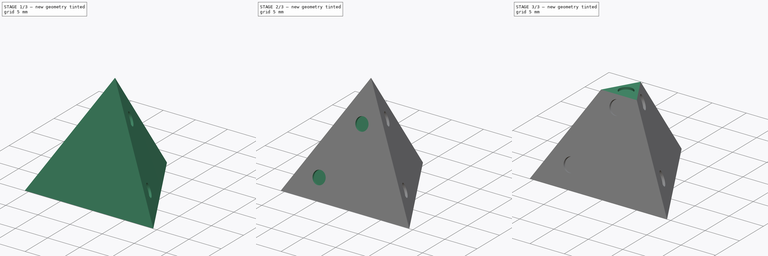
[diagram: build sequence overview — one tinted view per stage of 3, left to right]
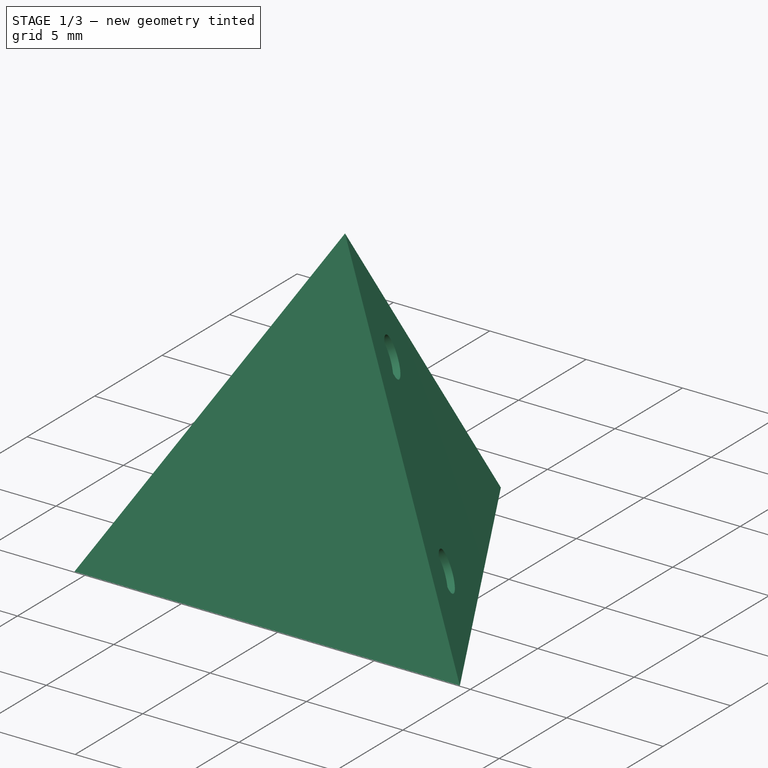
[diagram: stage 1 of 3 — iso view after this stage's code; geometry added in this stage tinted green]
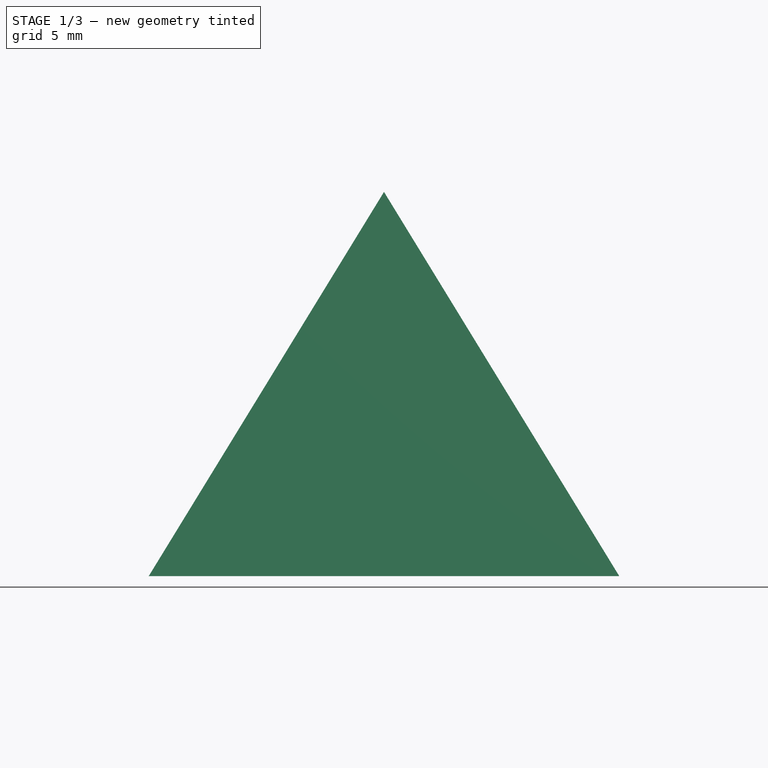
[diagram: stage 1 of 3 — front view after this stage's code; geometry added in this stage tinted green]
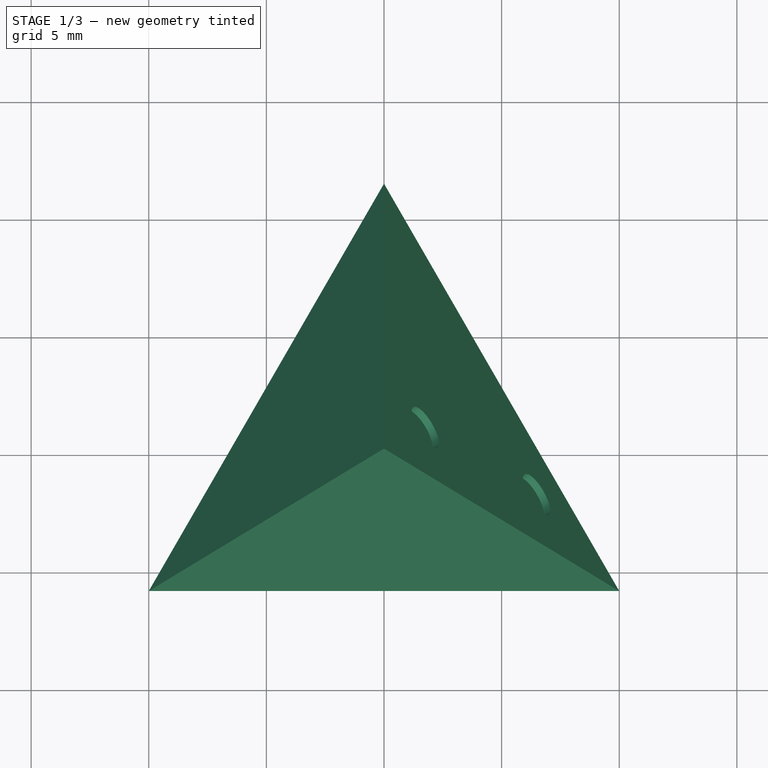
[diagram: stage 1 of 3 — top view after this stage's code; geometry added in this stage tinted green]
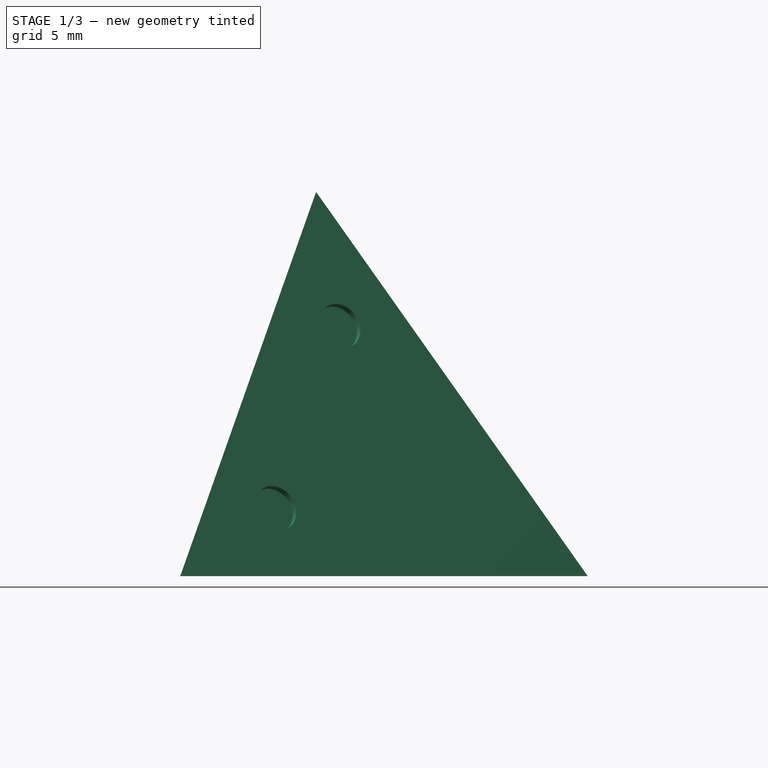
[diagram: stage 1 of 3 — right view after this stage's code; geometry added in this stage tinted green]
FCSTD DOCUMENT  (FreeCAD 0.21R33771 (Git))
Label: draft-4-face
License: All rights reserved
LicenseURL: http://en.wikipedia.org/wiki/All_rights_reserved
objects: Sketcher::SketchObject×6, PartDesign::Plane×6, PartDesign::Pocket×4, PartDesign::SubtractiveCylinder×2, PartDesign::AdditiveLoft×1, PartDesign::Body×1, App::Part×1
note: 27 computed .brp shape members not serialized (recipe doc carries the construction recipe); baked Part::Feature solids carry a one-line shape summary decoded from their .brp

FEATURE [Sketcher::SketchObject] Sketch
  FullyConstrained = true
  MapMode = 5
  Support = -> [XY_Plane]
  sketch-geometry (9):
    g0: LineSegment StartX=-10 StartY=-5.7735 StartZ=0 EndX=10 EndY=-5.7735 EndZ=0
    g1: LineSegment StartX=-10 StartY=-5.7735 StartZ=0 EndX=0 EndY=11.547 EndZ=0
    g2: LineSegment StartX=10 StartY=-5.7735 StartZ=0 EndX=0 EndY=11.547 EndZ=0
    g3: LineSegment StartX=0 StartY=-5.7735 StartZ=0 EndX=0 EndY=0 EndZ=0
    g4: LineSegment StartX=5 StartY=2.88675 StartZ=0 EndX=0 EndY=0 EndZ=0
    g5: LineSegment StartX=-4.99999 StartY=2.88677 StartZ=0 EndX=0 EndY=0 EndZ=0
    g6: LineSegment StartX=10 StartY=-5.7735 StartZ=0 EndX=0 EndY=0 EndZ=0
    g7: LineSegment StartX=-10 StartY=-5.7735 StartZ=0 EndX=0 EndY=0 EndZ=0
    g8: LineSegment StartX=0 StartY=11.547 StartZ=0 EndX=0 EndY=0 EndZ=0
  constraints (24):
    c: Equal(g0,g1)
    c: Coincident(g2,g0)
    c: Coincident(g1,g0)
    c: Coincident(g1,g2)
    c: Horizontal(g0)
    c: Equal(g0,g2)
    c: PointOnObject(g3,g0)
    c: Vertical(g3)
    c: PointOnObject(g4,g2)
    c: PointOnObject(g5,g1)
    c: Coincident(g6,g0)
    c: Coincident(g7,g0)
    c: Coincident(g8,g1)
    c: Vertical(g8)
    c: Equal(g7,g8)
    c: Equal(g5,g4)
    c: Equal(g4,g3)
    c: Coincident(g8,g4)
    c: Coincident(g8,g6)
    c: Coincident(g8,g3)
    c: Coincident(g8,g7)
    c: Coincident(g8,g5)
    c: Coincident(g3,g-1)
    c: DistanceX(g0,g0) = 20
FEATURE [Sketcher::SketchObject] Sketch001
  FullyConstrained = true
  MapMode = 5
  Placement = pos=(0,0,0) rot=(1,0,0;1.5708rad)
  Support = -> [XZ_Plane]
  sketch-geometry (1):
    g0: LineSegment StartX=0 StartY=0 StartZ=0 EndX=0 EndY=16.3299 EndZ=0
  constraints (3):
    c: Coincident(g0,g-1)
    c: PointOnObject(g0,g-2)
    c: DistanceY(g0,g0) = 16.3299
FEATURE [PartDesign::AdditiveLoft] AdditiveLoft
  Closed = false
  Profile = -> Sketch
  Ruled = false
  Sections = -> [Sketch001]
FEATURE [PartDesign::Plane] DatumPlane  label="DatumPlanePip1"
  Length = 88.8622
  MapMode = 5
  Placement = pos=(4.44444,2.566,1.81444) rot=(0.272385,0.596224,0.755197;2.15502rad)
  ResizeMode = 0
  Support = -> [AdditiveLoft]
  Width = 79.2178
FEATURE [Sketcher::SketchObject] Sketch002
  FullyConstrained = true
  MapMode = 5
  Placement = pos=(4.44444,2.566,1.81444) rot=(0.272385,0.596224,0.755197;2.15502rad)
  Support = -> [DatumPlane]
  sketch-geometry (9):
    g0: LineSegment StartX=-2.93 StartY=15.12 StartZ=0 EndX=1.66014 EndY=9.83506 EndZ=0
    g1: LineSegment StartX=1.66014 StartY=9.83506 StartZ=0 EndX=-5.21183 EndY=8.50235 EndZ=0
    g2: Circle CenterX=-1.77584 CenterY=9.1687 CenterZ=0 NormalX=0 NormalY=0 NormalZ=1 AngleXU=0 Radius=1
    g3: LineSegment StartX=-9.44 StartY=-3.76 StartZ=0 EndX=-2.56804 EndY=-2.4273 EndZ=0
    g4: Circle CenterX=-4.8631 CenterY=0.215176 CenterZ=0 NormalX=0 NormalY=0 NormalZ=1 AngleXU=0 Radius=1
    g5: LineSegment StartX=-4.8631 StartY=0.215176 StartZ=0 EndX=-5.6181 EndY=-0.440558 EndZ=0
    g6: LineSegment StartX=-1.77584 StartY=9.1687 StartZ=0 EndX=-1.96623 EndY=10.1504 EndZ=0
    g7: LineSegment StartX=-7.15817 StartY=2.85765 StartZ=0 EndX=-2.56804 EndY=-2.4273 EndZ=0
    g8: LineSegment StartX=-9.44 StartY=-3.76 StartZ=0 EndX=-2.93 EndY=15.12 EndZ=0
  constraints (26):
    c: Coincident(g1,g0)
    c: PointOnObject(g2,g1)
    c: Diameter(g2) = 2
    c: Distance(g3) = 7
    c: Diameter(g4) = 2
    c: Symmetric(g3,g7,g5)
    c: Coincident(g4,g5)
    c: Symmetric(g0,g1,g6)
    c: Coincident(g6,g2)
    c: PointOnObject(g6,g2)
    c: PointOnObject(g5,g4)
    c: Coincident(g7,g3)
    c: PointOnObject(g4,g7)
    c: Coincident(g8,g3)
    c: Coincident(g8,g0)
    c: PointOnObject(g7,g8)
    c: PointOnObject(g1,g8)
    c: Angle(g3,g8) = 1.0472
    c: Angle(g8,g0) = 1.0472
    c: Equal(g3,g7)
    c: Equal(g7,g1)
    c: Equal(g1,g0)
    c: DistanceX(g0,g-1) = 2.93
    c: DistanceY(g3,g-1) = 3.76
    c: DistanceX(g3,g-1) = 9.44
    c: DistanceY(g-1,g0) = 15.12
FEATURE [PartDesign::Pocket] Pocket  label="PocketPip1"
  BaseFeature = -> AdditiveLoft
  Direction = (-0.816496,-0.471404,-0.333334)
  Length = 0.33
  Length2 = 5
  Profile = -> Sketch002
  ReferenceAxis = -> Sketch002 [N_Axis]
  Type = 0
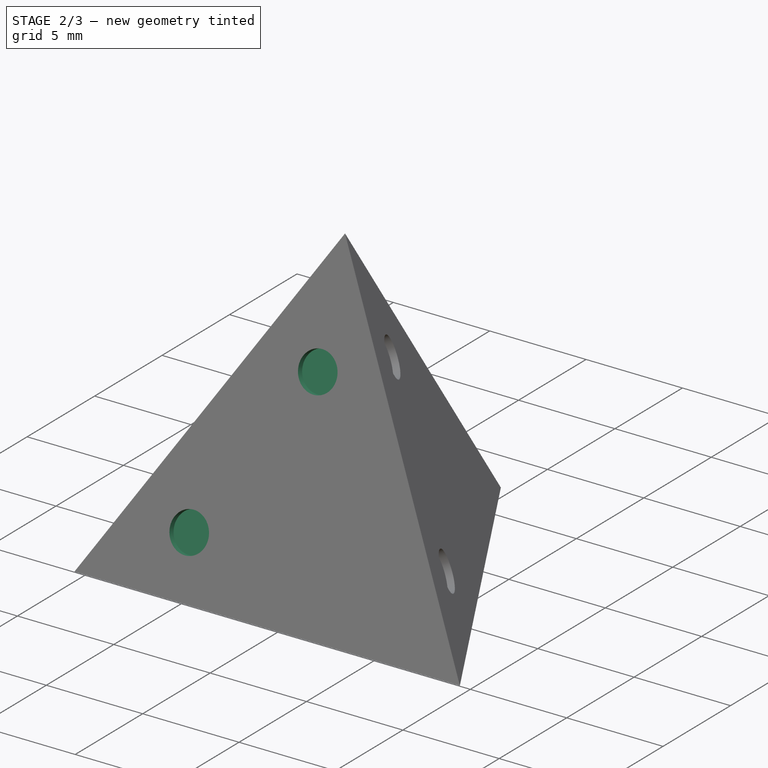
[diagram: stage 2 of 3 — iso view after this stage's code; geometry added in this stage tinted green]
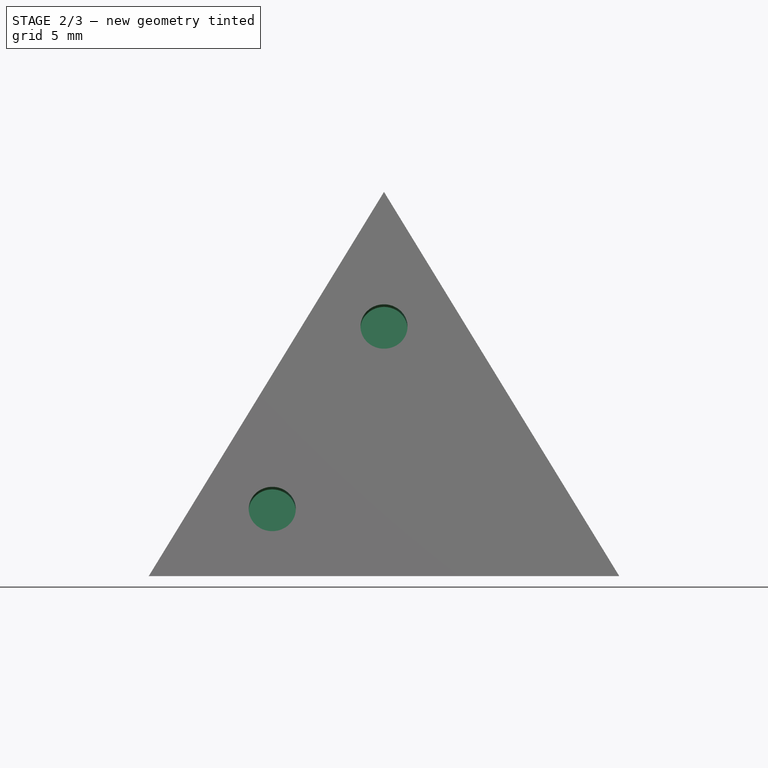
[diagram: stage 2 of 3 — front view after this stage's code; geometry added in this stage tinted green]
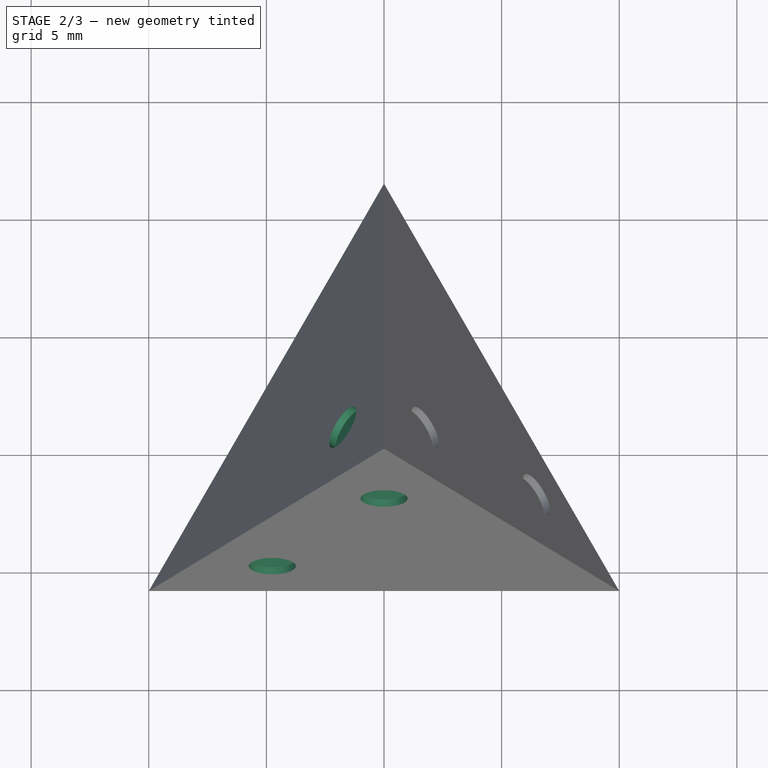
[diagram: stage 2 of 3 — top view after this stage's code; geometry added in this stage tinted green]
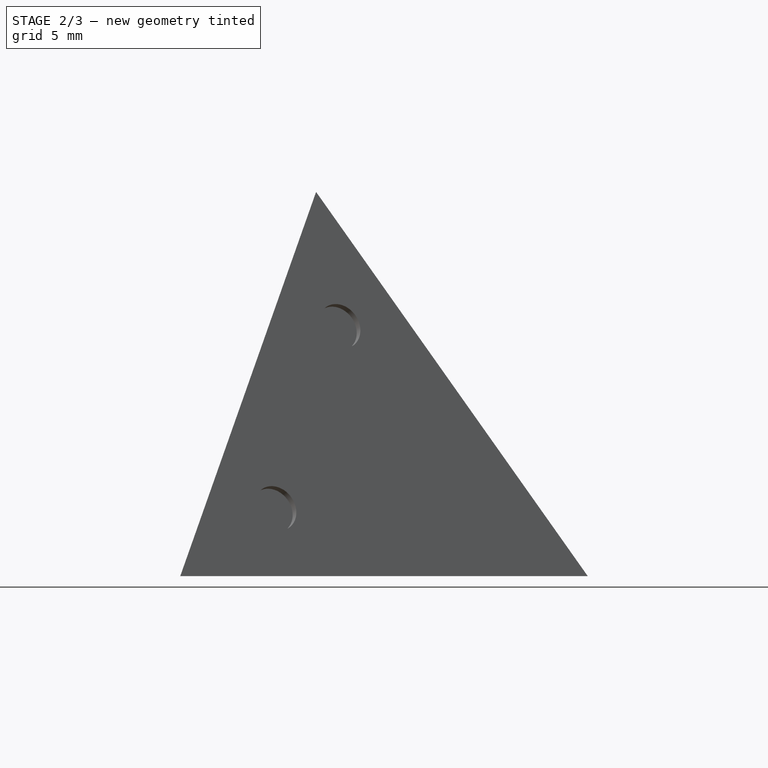
[diagram: stage 2 of 3 — right view after this stage's code; geometry added in this stage tinted green]
FEATURE [PartDesign::Plane] DatumPlane001  label="DatumPlanePip2"
  Length = 61.3432
  MapMode = 5
  Placement = pos=(0,-5.132,1.81444) rot=(1,0,0;1.23096rad)
  ResizeMode = 0
  Support = -> [Pocket]
  Width = 75.1609
FEATURE [Sketcher::SketchObject] Sketch003  label="sketchpip2"
  FullyConstrained = true
  MapMode = 5
  Placement = pos=(0,-5.132,1.81444) rot=(1,0,0;1.23096rad)
  Support = -> [DatumPlane001]
  sketch-geometry (9):
    g0: LineSegment StartX=0 StartY=15.39 StartZ=0 EndX=-10 EndY=-1.93051 EndZ=0
    g1: LineSegment StartX=0 StartY=15.39 StartZ=0 EndX=3.5 EndY=9.32782 EndZ=0
    g2: LineSegment StartX=3.5 StartY=9.32782 StartZ=0 EndX=-3.5 EndY=9.32782 EndZ=0
    g3: LineSegment StartX=-10 StartY=-1.93051 StartZ=0 EndX=-3 EndY=-1.93051 EndZ=0
    g4: LineSegment StartX=-3 StartY=-1.93051 StartZ=0 EndX=-6.5 EndY=4.13167 EndZ=0
    g5: Circle CenterX=-4.75 CenterY=1.10058 CenterZ=0 NormalX=0 NormalY=0 NormalZ=1 AngleXU=0 Radius=1
    g6: LineSegment StartX=-4.75 StartY=1.10058 StartZ=0 EndX=-3.88397 EndY=1.60058 EndZ=0
    g7: Circle CenterX=2.1e-15 CenterY=9.32782 CenterZ=0 NormalX=0 NormalY=0 NormalZ=1 AngleXU=0 Radius=1
    g8: LineSegment StartX=2.1e-15 StartY=9.32782 StartZ=0 EndX=2.1e-15 EndY=10.3278 EndZ=0
  constraints (26):
    c: PointOnObject(g0,g-2)
    c: Distance(g0) = 20
    c: Coincident(g1,g0)
    c: Distance(g1) = 7
    c: Coincident(g2,g1)
    c: Horizontal(g2)
    c: PointOnObject(g2,g0)
    c: Coincident(g3,g0)
    c: Horizontal(g3)
    c: Coincident(g4,g3)
    c: PointOnObject(g4,g0)
    c: PointOnObject(g5,g4)
    c: Diameter(g5) = 2
    c: Coincident(g6,g5)
    c: PointOnObject(g6,g5)
    c: Symmetric(g4,g3,g6)
    c: PointOnObject(g7,g2)
    c: Diameter(g7) = 2
    c: Coincident(g8,g7)
    c: PointOnObject(g8,g7)
    c: Symmetric(g2,g1,g8)
    c: Equal(g1,g2)
    c: Equal(g2,g4)
    c: Equal(g4,g3)
    c: Angle(g0,g-2) = 0.523599
    c: DistanceY(g-1,g0) = 15.39
FEATURE [PartDesign::Pocket] Pocket001  label="PocketPip2"
  BaseFeature = -> Pocket
  Direction = (0,0.942809,-0.333334)
  Length = 0.33
  Length2 = 5
  Profile = -> Sketch003
  ReferenceAxis = -> Sketch003 [N_Axis]
  Type = 0
FEATURE [PartDesign::Plane] DatumPlane002  label="DatumPip3a"
  Length = 88.8622
  MapMode = 5
  Placement = pos=(-4.44444,2.566,1.81444) rot=(-0.272385,0.596224,0.755197;4.12817rad)
  ResizeMode = 0
  Support = -> [Pocket001]
  Width = 79.2178
FEATURE [Sketcher::SketchObject] Sketch004  label="SketchPip3a"
  FullyConstrained = true
  MapMode = 5
  Placement = pos=(-4.44444,2.566,1.81444) rot=(-0.272385,0.596224,0.755197;4.12817rad)
  Support = -> [DatumPlane002]
  sketch-geometry (5):
    g0: LineSegment StartX=2.91 StartY=15.12 StartZ=0 EndX=5.20201 EndY=8.50587 EndZ=0
    g1: LineSegment StartX=5.20201 StartY=8.50587 StartZ=0 EndX=-1.672 EndY=9.828 EndZ=0
    g2: LineSegment StartX=-10.1814 StartY=0 StartZ=0 EndX=2.91 EndY=15.12 EndZ=0
    g3: Circle CenterX=1.765 CenterY=9.16694 CenterZ=0 NormalX=0 NormalY=0 NormalZ=1 AngleXU=0 Radius=1
    g4: LineSegment StartX=1.765 StartY=9.16694 StartZ=0 EndX=1.95388 EndY=10.1489 EndZ=0
  constraints (15):
    c: Coincident(g1,g0)
    c: PointOnObject(g2,g-1)
    c: Coincident(g2,g0)
    c: PointOnObject(g1,g2)
    c: Distance(g0) = 7
    c: Distance(g2) = 20
    c: PointOnObject(g3,g1)
    c: Diameter(g3) = 2
    c: Coincident(g4,g3)
    c: PointOnObject(g4,g3)
    c: Symmetric(g0,g1,g4)
    c: Angle(g2,g0) = 1.0472
    c: Angle(g0,g1) = 1.0472
    c: DistanceX(g-1,g0) = 2.91
    c: DistanceY(g-1,g0) = 15.12
FEATURE [PartDesign::Pocket] Pocket002
  BaseFeature = -> Pocket001
  Direction = (0.816496,-0.471404,-0.333334)
  Length = 0.33
  Length2 = 5
  Profile = -> Sketch004
  ReferenceAxis = -> Sketch004 [N_Axis]
  Type = 0
FEATURE [PartDesign::Plane] DatumPlane003  label="DatumPlanePip2b"
  Length = 60.0456
  MapMode = 5
  Placement = pos=(0,0,0) rot=(1,0,0;3.14159rad)
  ResizeMode = 0
  Support = -> [Pocket002]
  Width = 60.0456
FEATURE [Sketcher::SketchObject] Sketch005  label="SketchPip2b"
  FullyConstrained = true
  MapMode = 5
  Placement = pos=(0,0,0) rot=(1,0,0;3.14159rad)
  Support = -> [DatumPlane003]
  sketch-geometry (5):
    g0: LineSegment StartX=-10 StartY=5.77051 StartZ=0 EndX=0 EndY=-11.55 EndZ=0
    g1: LineSegment StartX=-10 StartY=5.77051 StartZ=0 EndX=-3 EndY=5.77051 EndZ=0
    g2: LineSegment StartX=-3 StartY=5.77051 StartZ=0 EndX=-6.5 EndY=-0.29167 EndZ=0
    g3: Circle CenterX=-4.75 CenterY=2.73942 CenterZ=0 NormalX=0 NormalY=0 NormalZ=1 AngleXU=0 Radius=1
    g4: LineSegment StartX=-4.75 StartY=2.73942 StartZ=0 EndX=-5.61603 EndY=3.23942 EndZ=0
  constraints (15):
    c: PointOnObject(g0,g-2)
    c: Coincident(g1,g0)
    c: Horizontal(g1)
    c: Coincident(g2,g1)
    c: PointOnObject(g2,g0)
    c: Equal(g1,g2)
    c: DistanceX(g1,g1) = 7
    c: PointOnObject(g3,g2)
    c: Diameter(g3) = 2
    c: Coincident(g4,g3)
    c: PointOnObject(g4,g3)
    c: Symmetric(g2,g1,g4)
    c: Angle(g-2,g0) = 0.523599
    c: Distance(g0) = 20
    c: DistanceY(g0,g-1) = 11.55
FEATURE [PartDesign::Pocket] Pocket003
  BaseFeature = -> Pocket002
  Direction = (0,0,1)
  Length = 0.33
  Length2 = 5
  Profile = -> Sketch005
  ReferenceAxis = -> Sketch005 [N_Axis]
  Type = 0
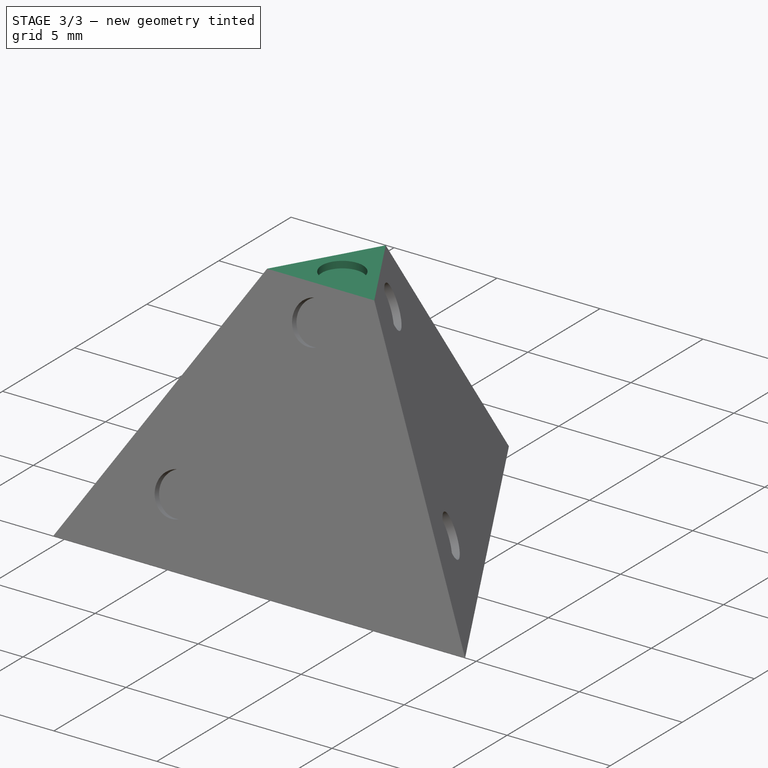
[diagram: stage 3 of 3 — iso view after this stage's code; geometry added in this stage tinted green]
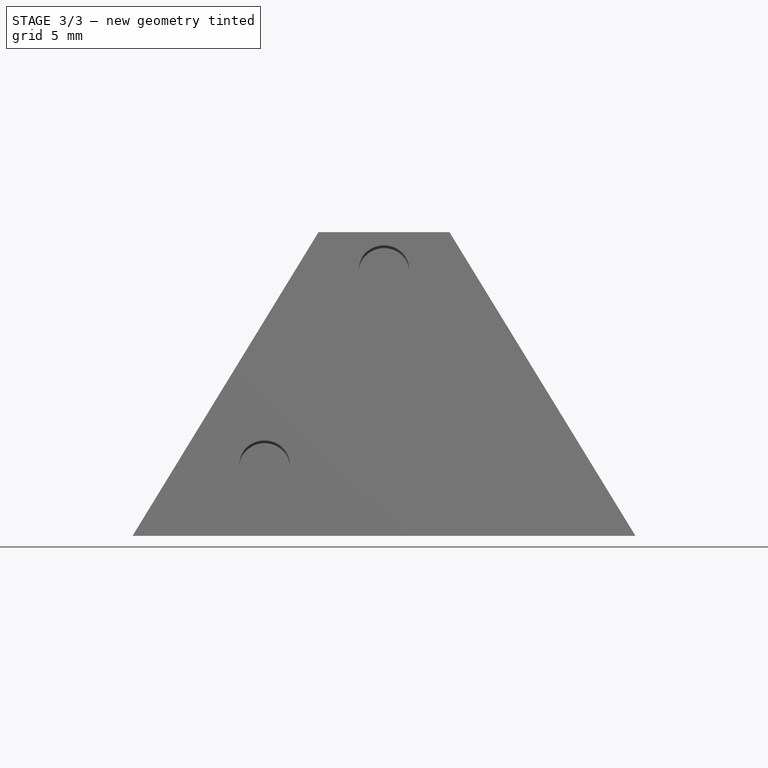
[diagram: stage 3 of 3 — front view after this stage's code; geometry added in this stage tinted green]
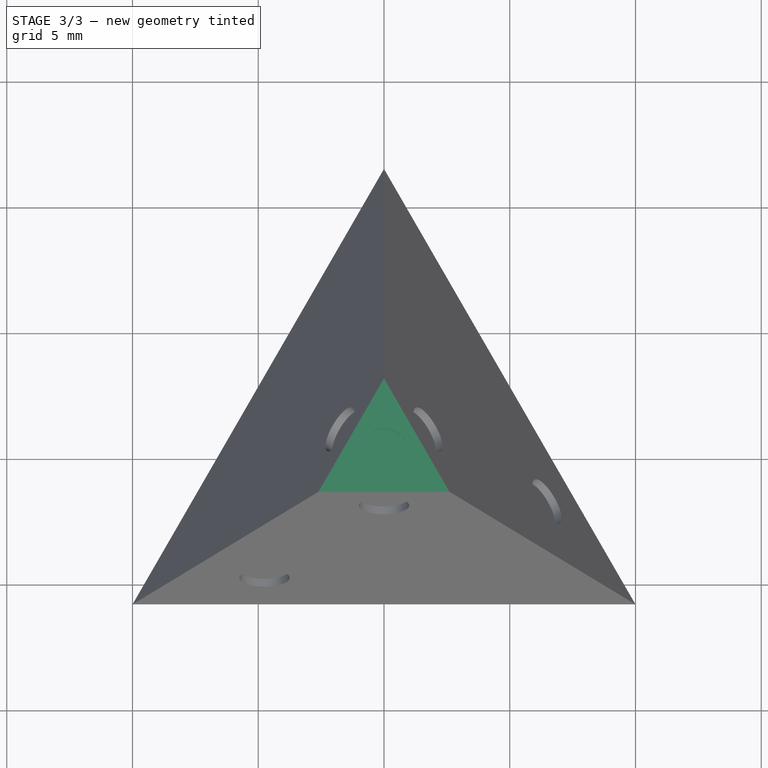
[diagram: stage 3 of 3 — top view after this stage's code; geometry added in this stage tinted green]
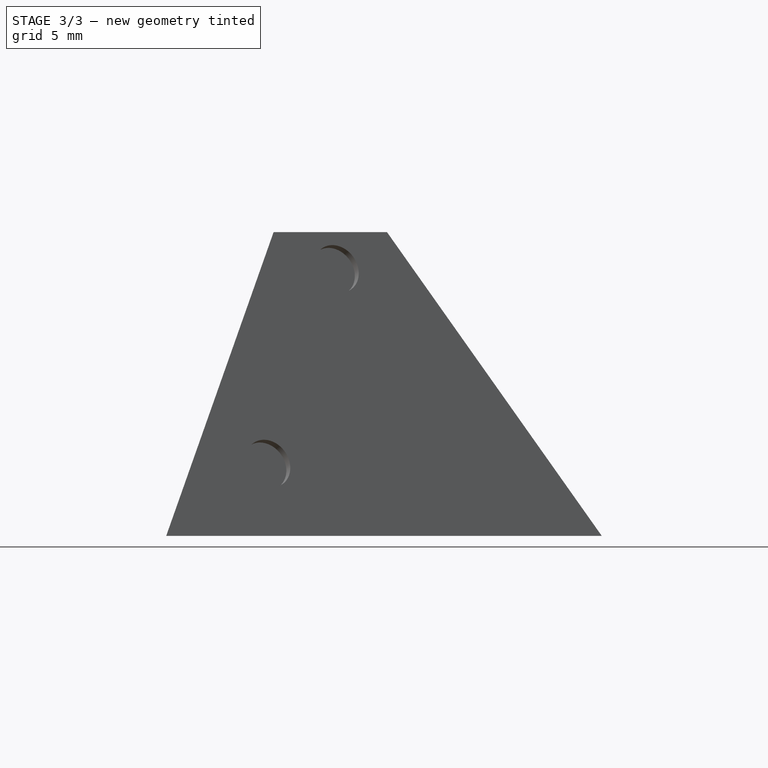
[diagram: stage 3 of 3 — right view after this stage's code; geometry added in this stage tinted green]
FEATURE [PartDesign::Plane] DatumPlane004
  AttachmentOffset = pos=(0,0,-16.3299) rot=(0,0,1;0rad)
  Length = 60.0456
  MapMode = 5
  Placement = pos=(0,0,16.3299) rot=(1,0,0;3.14159rad)
  ResizeMode = 0
  Support = -> [Pocket003]
  Width = 60.0456
FEATURE [PartDesign::SubtractiveCylinder] Cylinder
  Angle = 360
  AttacherType = Attacher::AttachEngine3D
  BaseFeature = -> Pocket003
  FirstAngle = 0
  Height = 4.25
  MapMode = 5
  Placement = pos=(0,0,16.3299) rot=(1,0,0;3.14159rad)
  Radius = 3.5
  SecondAngle = 0
  Support = -> [DatumPlane004]
FEATURE [PartDesign::Plane] DatumPlane005
  AttachmentOffset = pos=(0,0,-16.3299) rot=(0,0,1;0rad)
  Length = 61.3432
  MapMode = 5
  Placement = pos=(0,15.396,10.8866) rot=(0,-0.57735,0.816497;3.14159rad)
  ResizeMode = 0
  Support = -> [Cylinder]
  Width = 75.1609
FEATURE [PartDesign::SubtractiveCylinder] Cylinder001
  Angle = 360
  AttacherType = Attacher::AttachEngine3D
  AttachmentOffset = pos=(0,0,-0.33) rot=(0,0,1;0rad)
  BaseFeature = -> Cylinder
  FirstAngle = 0
  Height = 0.33
  MapMode = 5
  Placement = pos=(0,0,11.7499) rot=(0,0,1;0rad)
  Radius = 1
  SecondAngle = 0
  Support = -> [Cylinder]
FEATURE [PartDesign::Body] Body  label="base"
  Group = -> [Sketch,Sketch001,AdditiveLoft,DatumPlane,Sketch002,Pocket,DatumPlane001,Sketch003,Pocket001,DatumPlane002,Sketch004,Pocket002,DatumPlane003,Sketch005,Pocket003,DatumPlane004,Cylinder,DatumPlane005,Cylinder001]
  Origin = -> Origin
  Tip = -> Cylinder001
FEATURE [App::Part] Part
  Group = -> [Body]
  Origin = -> Origin001
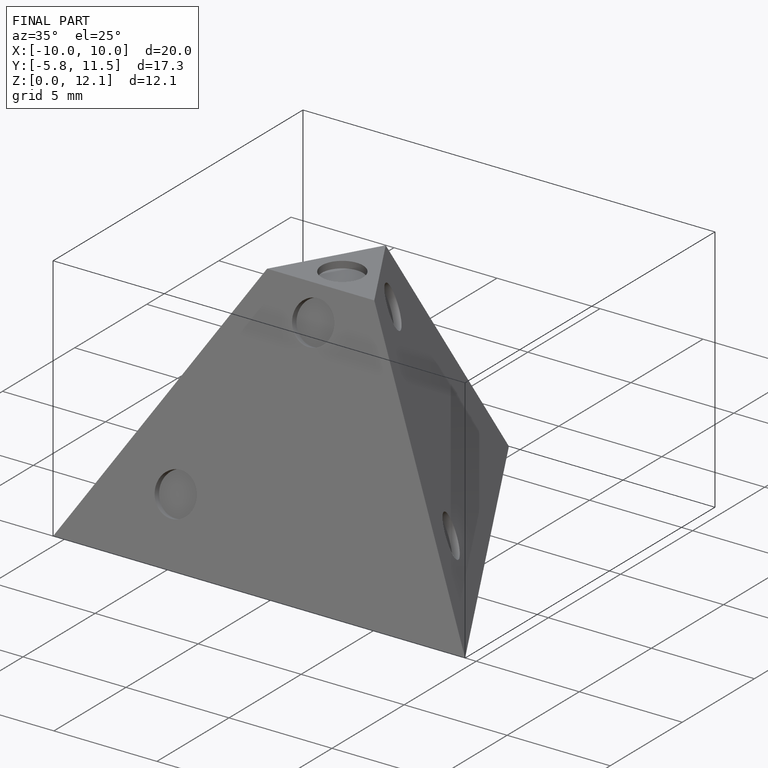
[diagram: finished part — iso view with bounding-box wireframe]
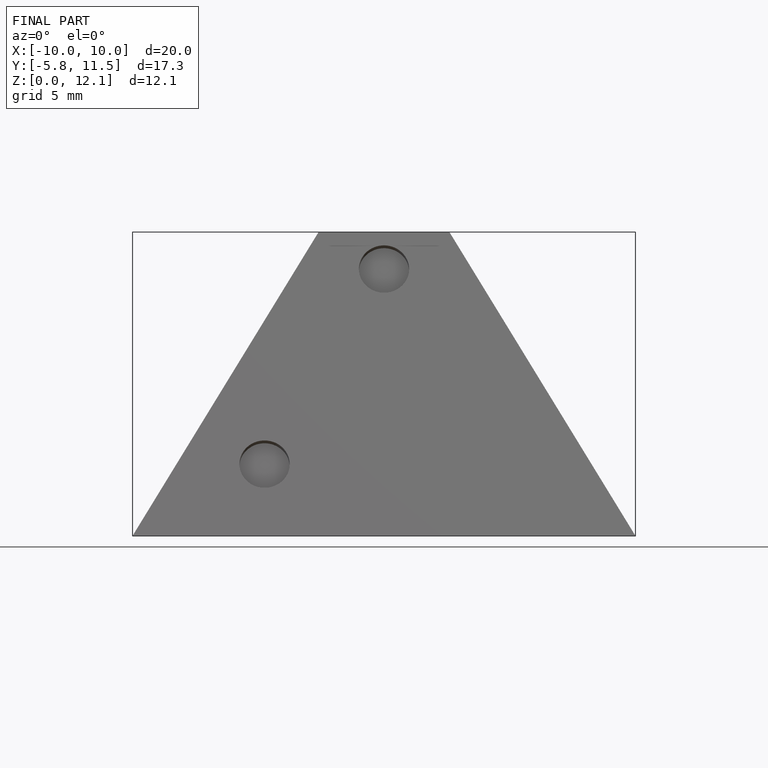
[diagram: finished part — front view with bounding-box wireframe]
